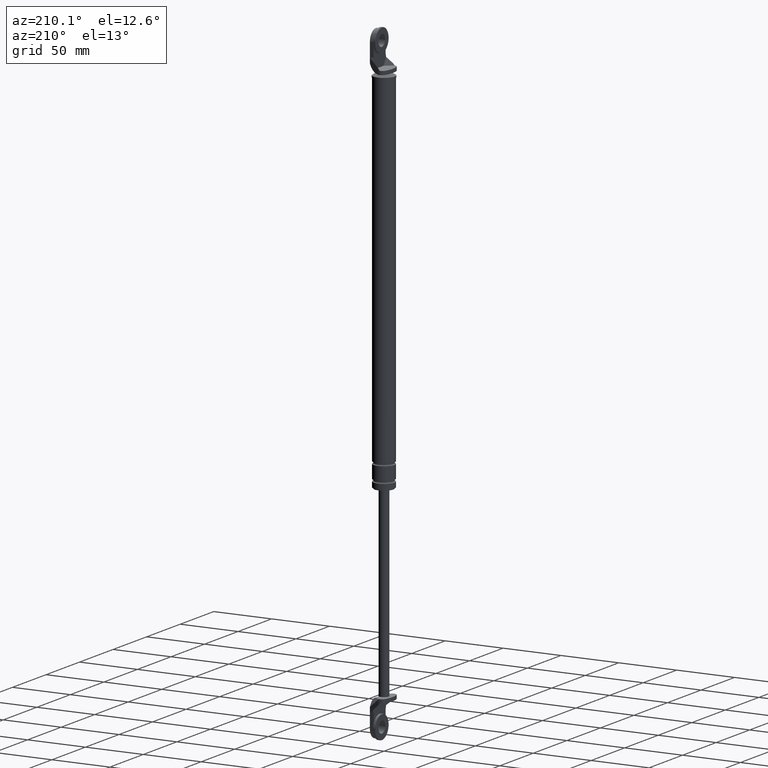
[diagram: clean part render]
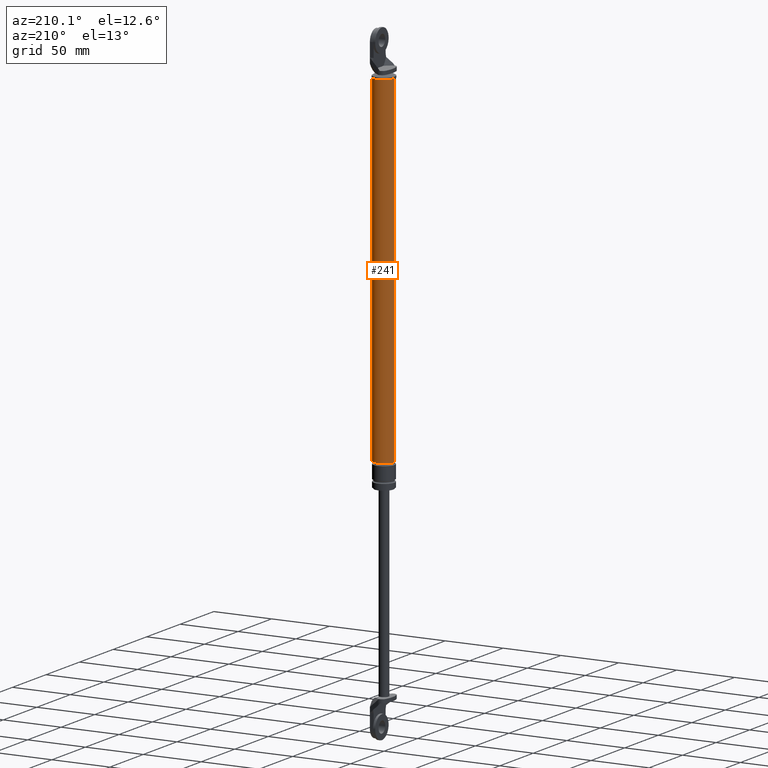
[diagram: same view with one face highlighted and labeled with its STEP entity id]
A machine part, auxiliary view. The second image highlights one B-rep face of the part: STEP entity #241.
In plain terms, the highlighted cylindrical surface (edge-blend (fillet) strip) has radius 9 mm, axis along (0, 0, 1).
Its self-contained STEP definition (entity closure, byte-faithful):
#241=ADVANCED_FACE('',(#665),#664,.T.);
#664=CYLINDRICAL_SURFACE('',#1392,9.00000000000E+000);
#665=FACE_OUTER_BOUND('',#1393,.T.);
#1389=CARTESIAN_POINT('',(0.00000000000E+000,3.58204186421E-014,0.00000000000E+000));
#1390=DIRECTION('',(-0.00000000000E+000,-0.00000000000E+000,1.00000000000E+000));
#1391=DIRECTION('',(1.00000000000E+000,0.00000000000E+000,0.00000000000E+000));
#1392=AXIS2_PLACEMENT_3D('',#1389,#1390,#1391);
#1393=EDGE_LOOP('',(#1942,#1943,#1944,#1945));
#1942=ORIENTED_EDGE('',*,*,#2222,.T.);
#1943=ORIENTED_EDGE('',*,*,#2257,.F.);
#1944=ORIENTED_EDGE('',*,*,#2258,.F.);
#1945=ORIENTED_EDGE('',*,*,#2259,.T.);
#2222=EDGE_CURVE('',#2786,#2785,#2793,.T.);
#2257=EDGE_CURVE('',#3020,#2785,#3021,.T.);
#2258=EDGE_CURVE('',#3027,#3020,#3028,.T.);
#2259=EDGE_CURVE('',#3027,#2786,#3034,.T.);
#2785=VERTEX_POINT('',#3950);
#2786=VERTEX_POINT('',#3951);
#2793=CIRCLE('',#3959,9.00000000000E+000);
#3020=VERTEX_POINT('',#4089);
#3021=(BOUNDED_CURVE() B_SPLINE_CURVE(1,(#4090,#4091),.UNSPECIFIED.,.F.,.F.) B_SPLINE_CURVE_WITH_KNOTS((2,2),(3.18471337672E-002,9.68152866275E-001),.UNSPECIFIED.) CURVE() GEOMETRIC_REPRESENTATION_ITEM() RATIONAL_B_SPLINE_CURVE((1.00000000000E+000,1.00000000000E+000)) REPRESENTATION_ITEM('') );
#3027=VERTEX_POINT('',#4092);
#3028=CIRCLE('',#4096,9.00000000000E+000);
#3034=(BOUNDED_CURVE() B_SPLINE_CURVE(1,(#4097,#4098),.UNSPECIFIED.,.F.,.F.) B_SPLINE_CURVE_WITH_KNOTS((2,2),(3.18471337580E-002,9.68152866242E-001),.UNSPECIFIED.) CURVE() GEOMETRIC_REPRESENTATION_ITEM() RATIONAL_B_SPLINE_CURVE((7.50000000000E-001,7.50000000000E-001)) REPRESENTATION_ITEM('') );
#3950=CARTESIAN_POINT('',(9.00000000000E+000,3.61192557345E-014,8.49999850000E+001));
#3951=CARTESIAN_POINT('',(-9.00000000000E+000,3.58204186421E-014,8.49999850000E+001));
#3956=CARTESIAN_POINT('',(0.00000000000E+000,3.58204186421E-014,8.49999850000E+001));
#3957=DIRECTION('',(-0.00000000000E+000,0.00000000000E+000,-1.00000000000E+000));
#3958=DIRECTION('',(-1.00000000000E+000,-1.22460635382E-016,0.00000000000E+000));
#3959=AXIS2_PLACEMENT_3D('',#3956,#3957,#3958);
#4089=CARTESIAN_POINT('',(9.00000000000E+000,3.61192557345E-014,-2.09000015000E+002));
#4090=CARTESIAN_POINT('',(9.00000000000E+000,3.58204186421E-014,-2.09000014997E+002));
#4091=CARTESIAN_POINT('',(9.00000000000E+000,3.58204186421E-014,8.49999850104E+001));
#4092=CARTESIAN_POINT('',(-9.00000000000E+000,3.58204186421E-014,-2.09000015000E+002));
#4093=CARTESIAN_POINT('',(0.00000000000E+000,3.58204186421E-014,-2.09000015000E+002));
#4094=DIRECTION('',(-0.00000000000E+000,0.00000000000E+000,-1.00000000000E+000));
#4095=DIRECTION('',(-1.00000000000E+000,-1.22460635382E-016,0.00000000000E+000));
#4096=AXIS2_PLACEMENT_3D('',#4093,#4094,#4095);
#4097=CARTESIAN_POINT('',(-9.00000000000E+000,3.52310773148E-014,-2.09000015000E+002));
#4098=CARTESIAN_POINT('',(-9.00000000000E+000,3.52310773148E-014,8.49999850000E+001));